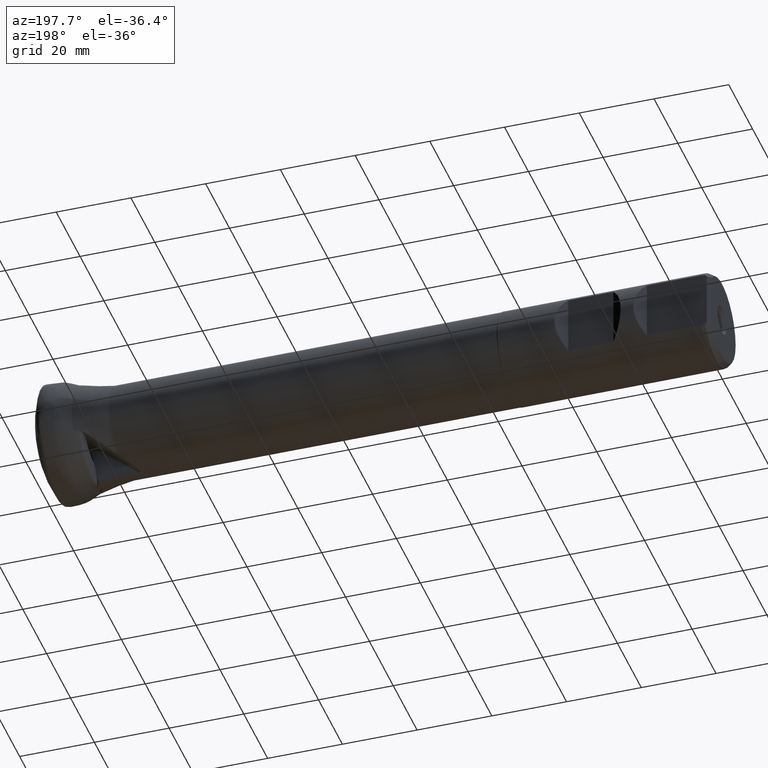
[diagram: clean part render]
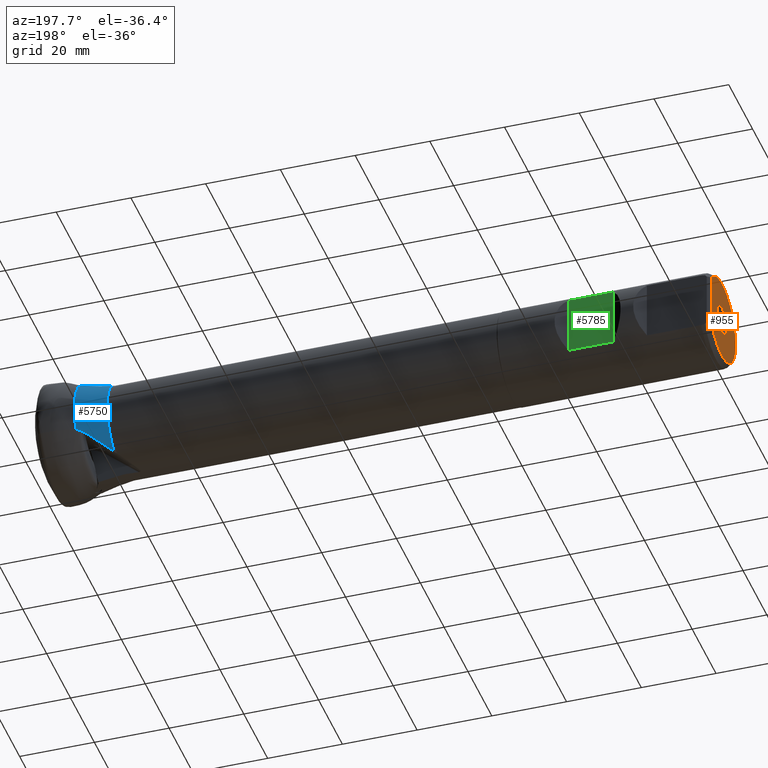
[diagram: same view with three faces highlighted in distinct colors, each labeled with its STEP entity id]
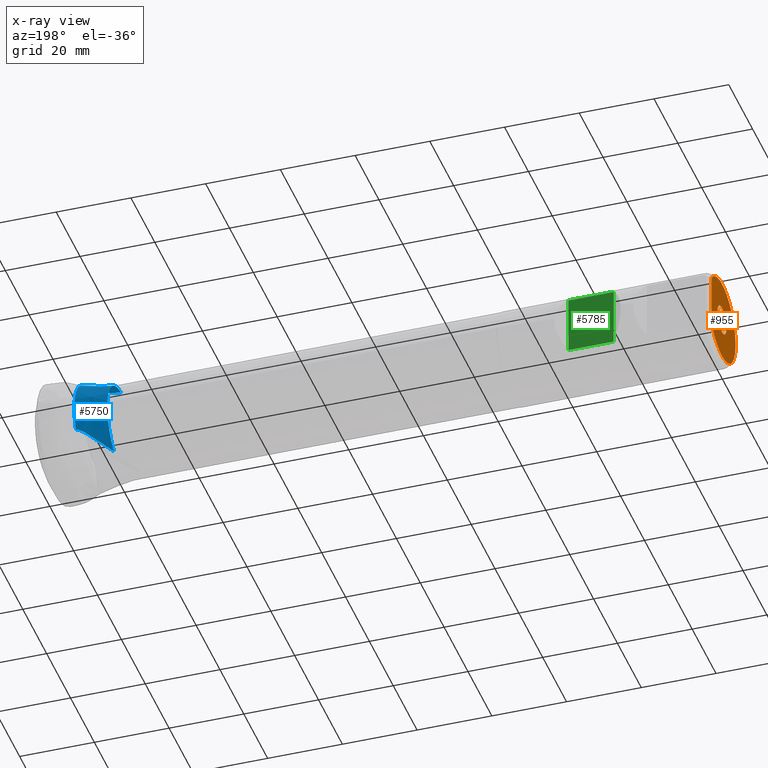
[diagram: x-ray of the same camera — body ghosted, the three highlighted faces saturated]
A machine part, auxiliary view with three faces highlighted in distinct colors.
The next image is the same camera in x-ray (body ghosted, the three faces saturated) — at least one of them is partly hidden behind the body in this view.
Their STEP definitions:

[orange] entity #955 — the highlighted planar face has unit normal (-1, 0, 0).
#35 = DIRECTION ( 'NONE',  ( 0.0000000000000000000, 0.0000000000000000000, 1.000000000000000000 ) ) ;
#69 = VERTEX_POINT ( 'NONE', #3834 ) ;
#84 = CARTESIAN_POINT ( 'NONE',  ( -179.9052591770394800, 8.700000000000013500, 0.0000000000000000000 ) ) ;
#118 = EDGE_LOOP ( 'NONE', ( #3109 ) ) ;
#283 = ORIENTED_EDGE ( 'NONE', *, *, #2565, .F. ) ;
#377 = AXIS2_PLACEMENT_3D ( 'NONE', #1573, #913, #903 ) ;
#493 = CIRCLE ( 'NONE', #3704, 3.827350269189596000 ) ;
#769 = EDGE_CURVE ( 'NONE', #5257, #5257, #493, .T. ) ;
#903 = DIRECTION ( 'NONE',  ( 0.0000000000000000000, 0.0000000000000000000, -1.000000000000000000 ) ) ;
#913 = DIRECTION ( 'NONE',  ( 1.000000000000000000, -0.0000000000000000000, -0.0000000000000000000 ) ) ;
#955 = ADVANCED_FACE ( 'NONE', ( #4304, #3098 ), #1785, .T. ) ;
#1573 = CARTESIAN_POINT ( 'NONE',  ( -179.9052591770394800, 0.0000000000000000000, 0.0000000000000000000 ) ) ;
#1688 = DIRECTION ( 'NONE',  ( 0.0000000000000000000, 0.0000000000000000000, 1.000000000000000000 ) ) ;
#1708 = DIRECTION ( 'NONE',  ( -1.000000000000000000, 0.0000000000000000000, 0.0000000000000000000 ) ) ;
#1746 = CARTESIAN_POINT ( 'NONE',  ( -179.9052591770394800, -2.205040968208084800E-014, 0.0000000000000000000 ) ) ;
#1785 = PLANE ( 'NONE',  #4058 ) ;
#2398 = EDGE_LOOP ( 'NONE', ( #5533, #283 ) ) ;
#2565 = EDGE_CURVE ( 'Kante186', #2904, #69, #4682, .T. ) ;
#2644 = EDGE_CURVE ( 'Kante184', #69, #2904, #5478, .T. ) ;
#2904 = VERTEX_POINT ( 'NONE', #3454 ) ;
#3098 = FACE_BOUND ( 'NONE', #118, .T. ) ;
#3109 = ORIENTED_EDGE ( 'NONE', *, *, #769, .T. ) ;
#3169 = VECTOR ( 'NONE', #35, 1000.000000000000000 ) ;
#3229 = DIRECTION ( 'NONE',  ( 0.0000000000000000000, 1.000000000000000000, 0.0000000000000000000 ) ) ;
#3249 = DIRECTION ( 'NONE',  ( 1.000000000000000000, -3.134654851948420700E-033, -0.0000000000000000000 ) ) ;
#3454 = CARTESIAN_POINT ( 'NONE',  ( -179.9052591770394800, 8.700000000000013500, 7.366817494685151700 ) ) ;
#3704 = AXIS2_PLACEMENT_3D ( 'NONE', #4148, #3249, #3229 ) ;
#3834 = CARTESIAN_POINT ( 'NONE',  ( -179.9052591770394800, 8.700000000000013500, -7.366817494685155200 ) ) ;
#4058 = AXIS2_PLACEMENT_3D ( 'NONE', #1746, #1708, #1688 ) ;
#4148 = CARTESIAN_POINT ( 'NONE',  ( -179.9052591770394800, -1.260071350987042000E-032, 0.0000000000000000000 ) ) ;
#4304 = FACE_OUTER_BOUND ( 'NONE', #2398, .T. ) ;
#4682 = CIRCLE ( 'NONE', #377, 11.39999999999997700 ) ;
#5257 = VERTEX_POINT ( 'NONE', #5659 ) ;
#5478 = LINE ( 'NONE', #84, #3169 ) ;
#5533 = ORIENTED_EDGE ( 'NONE', *, *, #2644, .F. ) ;
#5659 = CARTESIAN_POINT ( 'NONE',  ( -179.9052591770394800, 3.827350269189596000, 0.0000000000000000000 ) ) ;

[blue] entity #5750 — the highlighted conical surface has half-angle 10.845 deg.
#20 = CARTESIAN_POINT ( 'NONE',  ( -11.02894916797865900, 0.0000000000000000000, 0.0000000000000000000 ) ) ;
#54 = VERTEX_POINT ( 'NONE', #3155 ) ;
#55 = CARTESIAN_POINT ( 'NONE',  ( -11.93404889199001000, 5.629768630633682500, 12.67577168081455200 ) ) ;
#127 = CARTESIAN_POINT ( 'NONE',  ( -11.97108805161856400, 3.954272464050606800, 13.28689647333082200 ) ) ;
#226 = DIRECTION ( 'NONE',  ( 0.0000000000000000000, 0.0000000000000000000, -1.000000000000000000 ) ) ;
#262 = CARTESIAN_POINT ( 'NONE',  ( -11.85197339312804100, 3.891249293222240900, 13.32900885680756400 ) ) ;
#356 = CARTESIAN_POINT ( 'NONE',  ( -11.69215887038629400, 5.756780554766542000, 12.66951221479397700 ) ) ;
#455 = CARTESIAN_POINT ( 'NONE',  ( -17.69207920281027700, 8.667597417601447400, -9.592485727338996100 ) ) ;
#464 = CARTESIAN_POINT ( 'NONE',  ( -11.72447574804193400, 3.855969777800224200, 13.36460931204076500 ) ) ;
#482 = DIRECTION ( 'NONE',  ( 1.000000000000000000, -0.0000000000000000000, -0.0000000000000000000 ) ) ;
#510 =( BOUNDED_CURVE ( )  B_SPLINE_CURVE ( 3, ( #726, #779, #557, #532 ),
 .UNSPECIFIED., .F., .F. ) 
 B_SPLINE_CURVE_WITH_KNOTS ( ( 4, 4 ),
 ( 2.767098926285665800, 2.769609446091040100 ),
 .UNSPECIFIED. ) 
 CURVE ( )  GEOMETRIC_REPRESENTATION_ITEM ( )  RATIONAL_B_SPLINE_CURVE ( ( 1.000000000000000000, 0.9999994747742612100, 0.9999994747742612100, 1.000000000000000000 ) ) 
 REPRESENTATION_ITEM ( '' )  );
#532 = CARTESIAN_POINT ( 'NONE',  ( -12.84698300556499500, 0.4598028699455925500, 13.68699039805626700 ) ) ;
#557 = CARTESIAN_POINT ( 'NONE',  ( -12.84610833435503000, 0.4716826318634737000, 13.68675896649126000 ) ) ;
#572 =( BOUNDED_CURVE ( )  B_SPLINE_CURVE ( 3, ( #2905, #2896, #2753, #2736 ),
 .UNSPECIFIED., .F., .F. ) 
 B_SPLINE_CURVE_WITH_KNOTS ( ( 4, 4 ),
 ( 3.652654984011923100, 3.704687671997407800 ),
 .UNSPECIFIED. ) 
 CURVE ( )  GEOMETRIC_REPRESENTATION_ITEM ( )  RATIONAL_B_SPLINE_CURVE ( ( 1.000000000000000000, 0.9997743960071892000, 0.9997743960071892000, 1.000000000000000000 ) ) 
 REPRESENTATION_ITEM ( '' )  );
#579 = EDGE_CURVE ( 'NONE', #727, #3287, #4959, .T. ) ;
#589 = CARTESIAN_POINT ( 'NONE',  ( -19.32557320726839500, 0.8100570984010128100, 12.42720716309479600 ) ) ;
#726 = CARTESIAN_POINT ( 'NONE',  ( -12.84435055286813700, 0.4954412597049117600, 13.68625134253330300 ) ) ;
#727 = VERTEX_POINT ( 'NONE', #3538 ) ;
#745 = CIRCLE ( 'NONE', #1251, 14.04299999999999700 ) ;
#766 = VERTEX_POINT ( 'NONE', #3835 ) ;
#779 = CARTESIAN_POINT ( 'NONE',  ( -12.84523084966186300, 0.4835621013559866500, 13.68651261452087900 ) ) ;
#801 = EDGE_CURVE ( 'NONE', #54, #4942, #3826, .T. ) ;
#898 = EDGE_CURVE ( 'NONE', #2367, #5805, #1333, .T. ) ;
#941 = CARTESIAN_POINT ( 'NONE',  ( -12.28875197601391500, 5.221506486611251500, 12.77647489863860700 ) ) ;
#1023 = ORIENTED_EDGE ( 'NONE', *, *, #3666, .T. ) ;
#1194 = AXIS2_PLACEMENT_3D ( 'NONE', #2936, #2924, #2912 ) ;
#1235 = CARTESIAN_POINT ( 'NONE',  ( -12.24894019593957700, 4.225741751266892400, 13.14744622391484600 ) ) ;
#1251 = AXIS2_PLACEMENT_3D ( 'NONE', #5689, #5679, #5674 ) ;
#1292 = VERTEX_POINT ( 'NONE', #4712 ) ;
#1333 = B_SPLINE_CURVE_WITH_KNOTS ( 'NONE', 3,
 ( #2174, #2511, #3595, #2154, #2137, #2264, #2248, #2219 ),
 .UNSPECIFIED., .F., .F.,
 ( 4, 2, 2, 4 ),
 ( 0.001854455818472029600, 0.002552549445426654600, 0.003250643072381279500, 0.004646830326290525200 ),
 .UNSPECIFIED. ) ;
#1453 = CARTESIAN_POINT ( 'NONE',  ( -11.02894916797865900, 12.79865063447538100, -5.779307132921980300 ) ) ;
#1526 = CARTESIAN_POINT ( 'NONE',  ( -12.45612504931564500, 1.332140386985413100, 13.70499935697644000 ) ) ;
#1538 = CARTESIAN_POINT ( 'NONE',  ( -12.18332145881658200, 1.933032312123858000, 13.69910047365184100 ) ) ;
#1566 = EDGE_CURVE ( 'NONE', #2132, #3287, #572, .T. ) ;
#1567 = CARTESIAN_POINT ( 'NONE',  ( -12.84435055286813700, 0.4954412597049117600, 13.68625134253330300 ) ) ;
#1610 = CARTESIAN_POINT ( 'NONE',  ( -11.55679744593493500, 5.797414380229076500, 12.67935117282112500 ) ) ;
#1654 = ORIENTED_EDGE ( 'NONE', *, *, #2601, .F. ) ;
#1744 = EDGE_CURVE ( 'NONE', #766, #4942, #5798, .T. ) ;
#1872 = VERTEX_POINT ( 'NONE', #1567 ) ;
#2068 = CARTESIAN_POINT ( 'NONE',  ( -19.32557320726839500, 0.8100570984010128100, 12.42720716309479600 ) ) ;
#2073 = CARTESIAN_POINT ( 'NONE',  ( -17.18135352808649700, 0.6601186521293124200, 12.84862977874646700 ) ) ;
#2085 = CARTESIAN_POINT ( 'NONE',  ( -12.89099143549186300, 0.3601073089109347900, 13.68154237176579500 ) ) ;
#2090 = CARTESIAN_POINT ( 'NONE',  ( -15.03643451035192200, 0.5101313033421541700, 13.26643968663519000 ) ) ;
#2132 = VERTEX_POINT ( 'NONE', #464 ) ;
#2137 = CARTESIAN_POINT ( 'NONE',  ( -12.48493384116836100, 12.24146619451448900, -6.293666472329664300 ) ) ;
#2154 = CARTESIAN_POINT ( 'NONE',  ( -12.67986612617407100, 12.14864653523677000, -6.391589443666554800 ) ) ;
#2174 = CARTESIAN_POINT ( 'NONE',  ( -13.40528090614652800, 11.74800982124328100, -6.827252767057250300 ) ) ;
#2216 = CARTESIAN_POINT ( 'NONE',  ( -12.84698300556499500, 0.4598028699455925500, 13.68699039805626700 ) ) ;
#2219 = CARTESIAN_POINT ( 'NONE',  ( -11.02894916797865900, 12.79865063447538100, -5.779307132921980300 ) ) ;
#2248 = CARTESIAN_POINT ( 'NONE',  ( -11.46860815985748300, 12.65921551408598100, -5.883433273534986800 ) ) ;
#2253 = EDGE_CURVE ( 'NONE', #2132, #1292, #5281, .T. ) ;
#2257 = CARTESIAN_POINT ( 'NONE',  ( -12.86167808883134900, 0.4265643384666993300, 13.68529023100981100 ) ) ;
#2264 = CARTESIAN_POINT ( 'NONE',  ( -11.88731524209096300, 12.50379618095331900, -6.027091252590707000 ) ) ;
#2271 = CARTESIAN_POINT ( 'NONE',  ( -12.42264780430165100, 4.850920758011242600, 12.89627687243093100 ) ) ;
#2367 = VERTEX_POINT ( 'NONE', #4899 ) ;
#2413 = CARTESIAN_POINT ( 'NONE',  ( -15.69051625668242000, 10.34479108691687400, -8.370540253476265800 ) ) ;
#2422 =( BOUNDED_CURVE ( )  B_SPLINE_CURVE ( 3, ( #2626, #2587, #2257, #2216 ),
 .UNSPECIFIED., .F., .F. ) 
 B_SPLINE_CURVE_WITH_KNOTS ( ( 4, 4 ),
 ( 4.245314150330235000, 4.252305769071394800 ),
 .UNSPECIFIED. ) 
 CURVE ( )  GEOMETRIC_REPRESENTATION_ITEM ( )  RATIONAL_B_SPLINE_CURVE ( ( 1.000000000000000000, 0.9999959264430966500, 0.9999959264430966500, 1.000000000000000000 ) ) 
 REPRESENTATION_ITEM ( '' )  );
#2476 = CARTESIAN_POINT ( 'NONE',  ( -11.72447574804193400, 3.855969777800224200, 13.36460931204076500 ) ) ;
#2496 = ORIENTED_EDGE ( 'NONE', *, *, #801, .T. ) ;
#2511 = CARTESIAN_POINT ( 'NONE',  ( -13.23317261872343300, 11.85369065328024400, -6.711022915183662000 ) ) ;
#2532 = EDGE_CURVE ( 'NONE', #766, #3724, #2422, .T. ) ;
#2587 = CARTESIAN_POINT ( 'NONE',  ( -12.87634762523083200, 0.3933323494160804700, 13.68347421484867400 ) ) ;
#2588 = CARTESIAN_POINT ( 'NONE',  ( -12.41501721552276300, 4.575803991148697800, 12.99786597330616200 ) ) ;
#2601 = EDGE_CURVE ( 'NONE', #1872, #3724, #510, .T. ) ;
#2626 = CARTESIAN_POINT ( 'NONE',  ( -12.89099143549186300, 0.3601073089109347900, 13.68154237176579500 ) ) ;
#2736 = CARTESIAN_POINT ( 'NONE',  ( -11.61870751189143800, 3.128099959777931100, 13.57425423911942500 ) ) ;
#2753 = CARTESIAN_POINT ( 'NONE',  ( -11.65550015151433900, 3.372522896767969200, 13.51069528447675900 ) ) ;
#2835 = CONICAL_SURFACE ( 'NONE', #4891, 14.04299999999999700, 0.1892808887716079800 ) ;
#2858 = EDGE_CURVE ( 'NONE', #54, #2367, #4206, .T. ) ;
#2896 = CARTESIAN_POINT ( 'NONE',  ( -11.69076418593814100, 3.615200918572755800, 13.44079787298209200 ) ) ;
#2905 = CARTESIAN_POINT ( 'NONE',  ( -11.72447574804193400, 3.855969777800224200, 13.36460931204076500 ) ) ;
#2912 = DIRECTION ( 'NONE',  ( 0.0000000000000000000, 0.0000000000000000000, -1.000000000000000000 ) ) ;
#2924 = DIRECTION ( 'NONE',  ( 1.000000000000000000, -0.0000000000000000000, -0.0000000000000000000 ) ) ;
#2933 = B_SPLINE_CURVE_WITH_KNOTS ( 'NONE', 3,
 ( #4242, #4252, #4216, #4215, #4209, #4201 ),
 .UNSPECIFIED., .F., .F.,
 ( 4, 2, 4 ),
 ( 1.084202172485504300E-019, 0.0004689846848863576200, 0.0009379693697727149200 ),
 .UNSPECIFIED. ) ;
#2936 = CARTESIAN_POINT ( 'NONE',  ( -19.32557320726839500, 0.0000000000000000000, 0.0000000000000000000 ) ) ;
#2974 = ORIENTED_EDGE ( 'NONE', *, *, #2858, .F. ) ;
#3064 = CARTESIAN_POINT ( 'NONE',  ( -19.32557320726839500, 6.787148216991649700, -10.44156546968564000 ) ) ;
#3155 = CARTESIAN_POINT ( 'NONE',  ( -19.32557320726839500, 6.787148216991649700, -10.44156546968564000 ) ) ;
#3167 = ORIENTED_EDGE ( 'NONE', *, *, #1744, .F. ) ;
#3274 = CARTESIAN_POINT ( 'NONE',  ( -12.21992195163809700, 5.338900972241944500, 12.74192371344505900 ) ) ;
#3287 = VERTEX_POINT ( 'NONE', #5064 ) ;
#3321 = CARTESIAN_POINT ( 'NONE',  ( -11.28755348552124000, 5.820746959074341500, 12.72539880901441100 ) ) ;
#3484 = EDGE_LOOP ( 'NONE', ( #1654, #1023, #3861, #5602, #3810, #5636, #4106, #2974, #2496, #3167, #4589 ) ) ;
#3538 = CARTESIAN_POINT ( 'NONE',  ( -12.45612504931564500, 1.332140386985413100, 13.70499935697644000 ) ) ;
#3595 = CARTESIAN_POINT ( 'NONE',  ( -13.05383823499117200, 11.95478477448329900, -6.600259292816400800 ) ) ;
#3666 = EDGE_CURVE ( 'NONE', #1872, #727, #2933, .T. ) ;
#3724 = VERTEX_POINT ( 'NONE', #4100 ) ;
#3810 = ORIENTED_EDGE ( 'NONE', *, *, #2253, .T. ) ;
#3826 = CIRCLE ( 'NONE', #1194, 12.45358062474983500 ) ;
#3835 = CARTESIAN_POINT ( 'NONE',  ( -12.89099143549186300, 0.3601073089109347900, 13.68154237176579500 ) ) ;
#3861 = ORIENTED_EDGE ( 'NONE', *, *, #579, .T. ) ;
#3958 = CARTESIAN_POINT ( 'NONE',  ( -13.40528090614652800, 11.74800982124328100, -6.827252767057250300 ) ) ;
#4100 = CARTESIAN_POINT ( 'NONE',  ( -12.84698300556499500, 0.4598028699455925500, 13.68699039805626700 ) ) ;
#4106 = ORIENTED_EDGE ( 'NONE', *, *, #898, .F. ) ;
#4173 = FACE_OUTER_BOUND ( 'NONE', #3484, .T. ) ;
#4201 = CARTESIAN_POINT ( 'NONE',  ( -12.45612504931564500, 1.332140386985413100, 13.70499935697644000 ) ) ;
#4206 =( BOUNDED_CURVE ( )  B_SPLINE_CURVE ( 3, ( #3064, #455, #2413, #3958 ),
 .UNSPECIFIED., .F., .F. ) 
 B_SPLINE_CURVE_WITH_KNOTS ( ( 4, 4 ),
 ( 3.833729324262100700, 4.245138199799168200 ),
 .UNSPECIFIED. ) 
 CURVE ( )  GEOMETRIC_REPRESENTATION_ITEM ( )  RATIONAL_B_SPLINE_CURVE ( ( 1.000000000000000000, 0.9859448941430205600, 0.9859448941430205600, 1.000000000000000000 ) ) 
 REPRESENTATION_ITEM ( '' )  );
#4209 = CARTESIAN_POINT ( 'NONE',  ( -12.56889444204531300, 1.221186951673230100, 13.69407862162433900 ) ) ;
#4215 = CARTESIAN_POINT ( 'NONE',  ( -12.65968069004880500, 1.092420562634629100, 13.68781149856920200 ) ) ;
#4216 = CARTESIAN_POINT ( 'NONE',  ( -12.79276334509418900, 0.8059738972701883100, 13.68212314345359300 ) ) ;
#4242 = CARTESIAN_POINT ( 'NONE',  ( -12.84435055286813700, 0.4954412597049117600, 13.68625134253330300 ) ) ;
#4252 = CARTESIAN_POINT ( 'NONE',  ( -12.83263345930503400, 0.6535574891598466800, 13.68277371050550600 ) ) ;
#4395 = CARTESIAN_POINT ( 'NONE',  ( -11.61870751189143800, 3.128099959777931100, 13.57425423911942500 ) ) ;
#4445 = CARTESIAN_POINT ( 'NONE',  ( -11.15254021952716600, 5.804034797520062100, 12.76158408550646500 ) ) ;
#4511 = CARTESIAN_POINT ( 'NONE',  ( -11.90381186348707500, 2.532479912616487600, 13.65546093501030700 ) ) ;
#4589 = ORIENTED_EDGE ( 'NONE', *, *, #2532, .T. ) ;
#4712 = CARTESIAN_POINT ( 'NONE',  ( -11.02894916797867500, 5.760357854639778500, 12.80719041735890200 ) ) ;
#4814 = CARTESIAN_POINT ( 'NONE',  ( -12.04357397134325300, 5.542136227194227200, 12.69172110185500000 ) ) ;
#4891 = AXIS2_PLACEMENT_3D ( 'NONE', #20, #482, #226 ) ;
#4899 = CARTESIAN_POINT ( 'NONE',  ( -13.40528090614652800, 11.74800982124328100, -6.827252767057250300 ) ) ;
#4942 = VERTEX_POINT ( 'NONE', #589 ) ;
#4959 =( BOUNDED_CURVE ( )  B_SPLINE_CURVE ( 3, ( #1526, #1538, #4511, #4395 ),
 .UNSPECIFIED., .F., .F. ) 
 B_SPLINE_CURVE_WITH_KNOTS ( ( 4, 4 ),
 ( 4.313406564719507200, 4.439533897113696200 ),
 .UNSPECIFIED. ) 
 CURVE ( )  GEOMETRIC_REPRESENTATION_ITEM ( )  RATIONAL_B_SPLINE_CURVE ( ( 1.000000000000000000, 0.9986747639641249100, 0.9986747639641249100, 1.000000000000000000 ) ) 
 REPRESENTATION_ITEM ( '' )  );
#5064 = CARTESIAN_POINT ( 'NONE',  ( -11.61870751189143800, 3.128099959777931100, 13.57425423911942500 ) ) ;
#5101 = CARTESIAN_POINT ( 'NONE',  ( -12.16918275353786600, 4.121558319051439800, 13.19620876271154900 ) ) ;
#5148 = EDGE_CURVE ( 'NONE', #5805, #1292, #745, .T. ) ;
#5166 = CARTESIAN_POINT ( 'NONE',  ( -11.02894916797867500, 5.760357854639778500, 12.80719041735890200 ) ) ;
#5281 = B_SPLINE_CURVE_WITH_KNOTS ( 'NONE', 3,
 ( #2476, #262, #127, #5101, #1235, #2588, #2271, #941, #3274, #4814, #55, #356, #1610, #3321, #4445, #5166 ),
 .UNSPECIFIED., .F., .F.,
 ( 4, 2, 2, 2, 2, 2, 2, 4 ),
 ( 0.0007995216157426660300, 0.001210394823910671700, 0.001621268032078677300, 0.002443014448414686800, 0.002853887656582690400, 0.003264760864750694500, 0.003675634072918698500, 0.004086507281086702200 ),
 .UNSPECIFIED. ) ;
#5602 = ORIENTED_EDGE ( 'NONE', *, *, #1566, .F. ) ;
#5636 = ORIENTED_EDGE ( 'NONE', *, *, #5148, .F. ) ;
#5674 = DIRECTION ( 'NONE',  ( 0.0000000000000000000, 0.0000000000000000000, -1.000000000000000000 ) ) ;
#5679 = DIRECTION ( 'NONE',  ( 1.000000000000000000, -0.0000000000000000000, -0.0000000000000000000 ) ) ;
#5689 = CARTESIAN_POINT ( 'NONE',  ( -11.02894916797865900, 0.0000000000000000000, 0.0000000000000000000 ) ) ;
#5750 = ADVANCED_FACE ( 'NONE', ( #4173 ), #2835, .T. ) ;
#5798 = B_SPLINE_CURVE_WITH_KNOTS ( 'NONE', 3,
 ( #2085, #2090, #2073, #2068 ),
 .UNSPECIFIED., .F., .F.,
 ( 4, 4 ),
 ( 0.001911932527847265300, 0.008483054761772891600 ),
 .UNSPECIFIED. ) ;
#5805 = VERTEX_POINT ( 'NONE', #1453 ) ;

[green] entity #5785 — the highlighted planar face has unit normal (0, -1, -0).
#300 = AXIS2_PLACEMENT_3D ( 'NONE', #1661, #1562, #1960 ) ;
#617 = DIRECTION ( 'NONE',  ( -0.0000000000000000000, -0.0000000000000000000, 1.000000000000000000 ) ) ;
#731 = CARTESIAN_POINT ( 'NONE',  ( -119.9052591770394800, 9.700000000000022400, 7.884161337770780900 ) ) ;
#741 = DIRECTION ( 'NONE',  ( -1.000000000000000000, -0.0000000000000000000, -0.0000000000000000000 ) ) ;
#756 = VERTEX_POINT ( 'NONE', #3461 ) ;
#811 = VECTOR ( 'NONE', #1924, 1000.000000000000000 ) ;
#856 = CARTESIAN_POINT ( 'NONE',  ( -153.9552591770394700, 9.700000000000022400, -7.884161337770780900 ) ) ;
#1218 = CARTESIAN_POINT ( 'NONE',  ( -153.9552591770394700, 9.700000000000022400, 7.884161337770780900 ) ) ;
#1444 = LINE ( 'NONE', #731, #2435 ) ;
#1562 = DIRECTION ( 'NONE',  ( 0.0000000000000000000, -1.000000000000000000, -0.0000000000000000000 ) ) ;
#1591 = ORIENTED_EDGE ( 'NONE', *, *, #2951, .F. ) ;
#1661 = CARTESIAN_POINT ( 'NONE',  ( -141.8552591770394700, 9.700000000000022400, -35.00000000000000000 ) ) ;
#1769 = VECTOR ( 'NONE', #4828, 1000.000000000000000 ) ;
#1924 = DIRECTION ( 'NONE',  ( -0.0000000000000000000, -0.0000000000000000000, 1.000000000000000000 ) ) ;
#1929 = CARTESIAN_POINT ( 'NONE',  ( -153.9552591770394700, 9.700000000000022400, -35.00000000000000000 ) ) ;
#1931 = LINE ( 'NONE', #4705, #5206 ) ;
#1960 = DIRECTION ( 'NONE',  ( 0.0000000000000000000, 0.0000000000000000000, -1.000000000000000000 ) ) ;
#1984 = LINE ( 'NONE', #1929, #811 ) ;
#2033 = ORIENTED_EDGE ( 'NONE', *, *, #4890, .F. ) ;
#2176 = EDGE_LOOP ( 'NONE', ( #2033, #1591, #2234, #2403 ) ) ;
#2234 = ORIENTED_EDGE ( 'NONE', *, *, #5169, .F. ) ;
#2403 = ORIENTED_EDGE ( 'NONE', *, *, #4473, .T. ) ;
#2435 = VECTOR ( 'NONE', #741, 1000.000000000000000 ) ;
#2899 = VERTEX_POINT ( 'NONE', #5690 ) ;
#2951 = EDGE_CURVE ( 'Kante188', #2899, #756, #1931, .T. ) ;
#2957 = FACE_OUTER_BOUND ( 'NONE', #2176, .T. ) ;
#3461 = CARTESIAN_POINT ( 'NONE',  ( -141.8552591770394700, 9.700000000000022400, 7.884161337770777300 ) ) ;
#3715 = PLANE ( 'NONE',  #300 ) ;
#4473 = EDGE_CURVE ( 'Kante179', #5564, #5493, #1984, .T. ) ;
#4705 = CARTESIAN_POINT ( 'NONE',  ( -141.8552591770394700, 9.700000000000022400, -35.00000000000000000 ) ) ;
#4828 = DIRECTION ( 'NONE',  ( 1.000000000000000000, 0.0000000000000000000, 0.0000000000000000000 ) ) ;
#4887 = CARTESIAN_POINT ( 'NONE',  ( -119.9052591770394800, 9.700000000000022400, -7.884161337770780900 ) ) ;
#4890 = EDGE_CURVE ( 'NONE', #756, #5493, #1444, .T. ) ;
#5169 = EDGE_CURVE ( 'NONE', #5564, #2899, #5499, .T. ) ;
#5206 = VECTOR ( 'NONE', #617, 1000.000000000000000 ) ;
#5493 = VERTEX_POINT ( 'NONE', #1218 ) ;
#5499 = LINE ( 'NONE', #4887, #1769 ) ;
#5564 = VERTEX_POINT ( 'NONE', #856 ) ;
#5690 = CARTESIAN_POINT ( 'NONE',  ( -141.8552591770394700, 9.700000000000022400, -7.884161337770777300 ) ) ;
#5785 = ADVANCED_FACE ( 'NONE', ( #2957 ), #3715, .F. ) ;